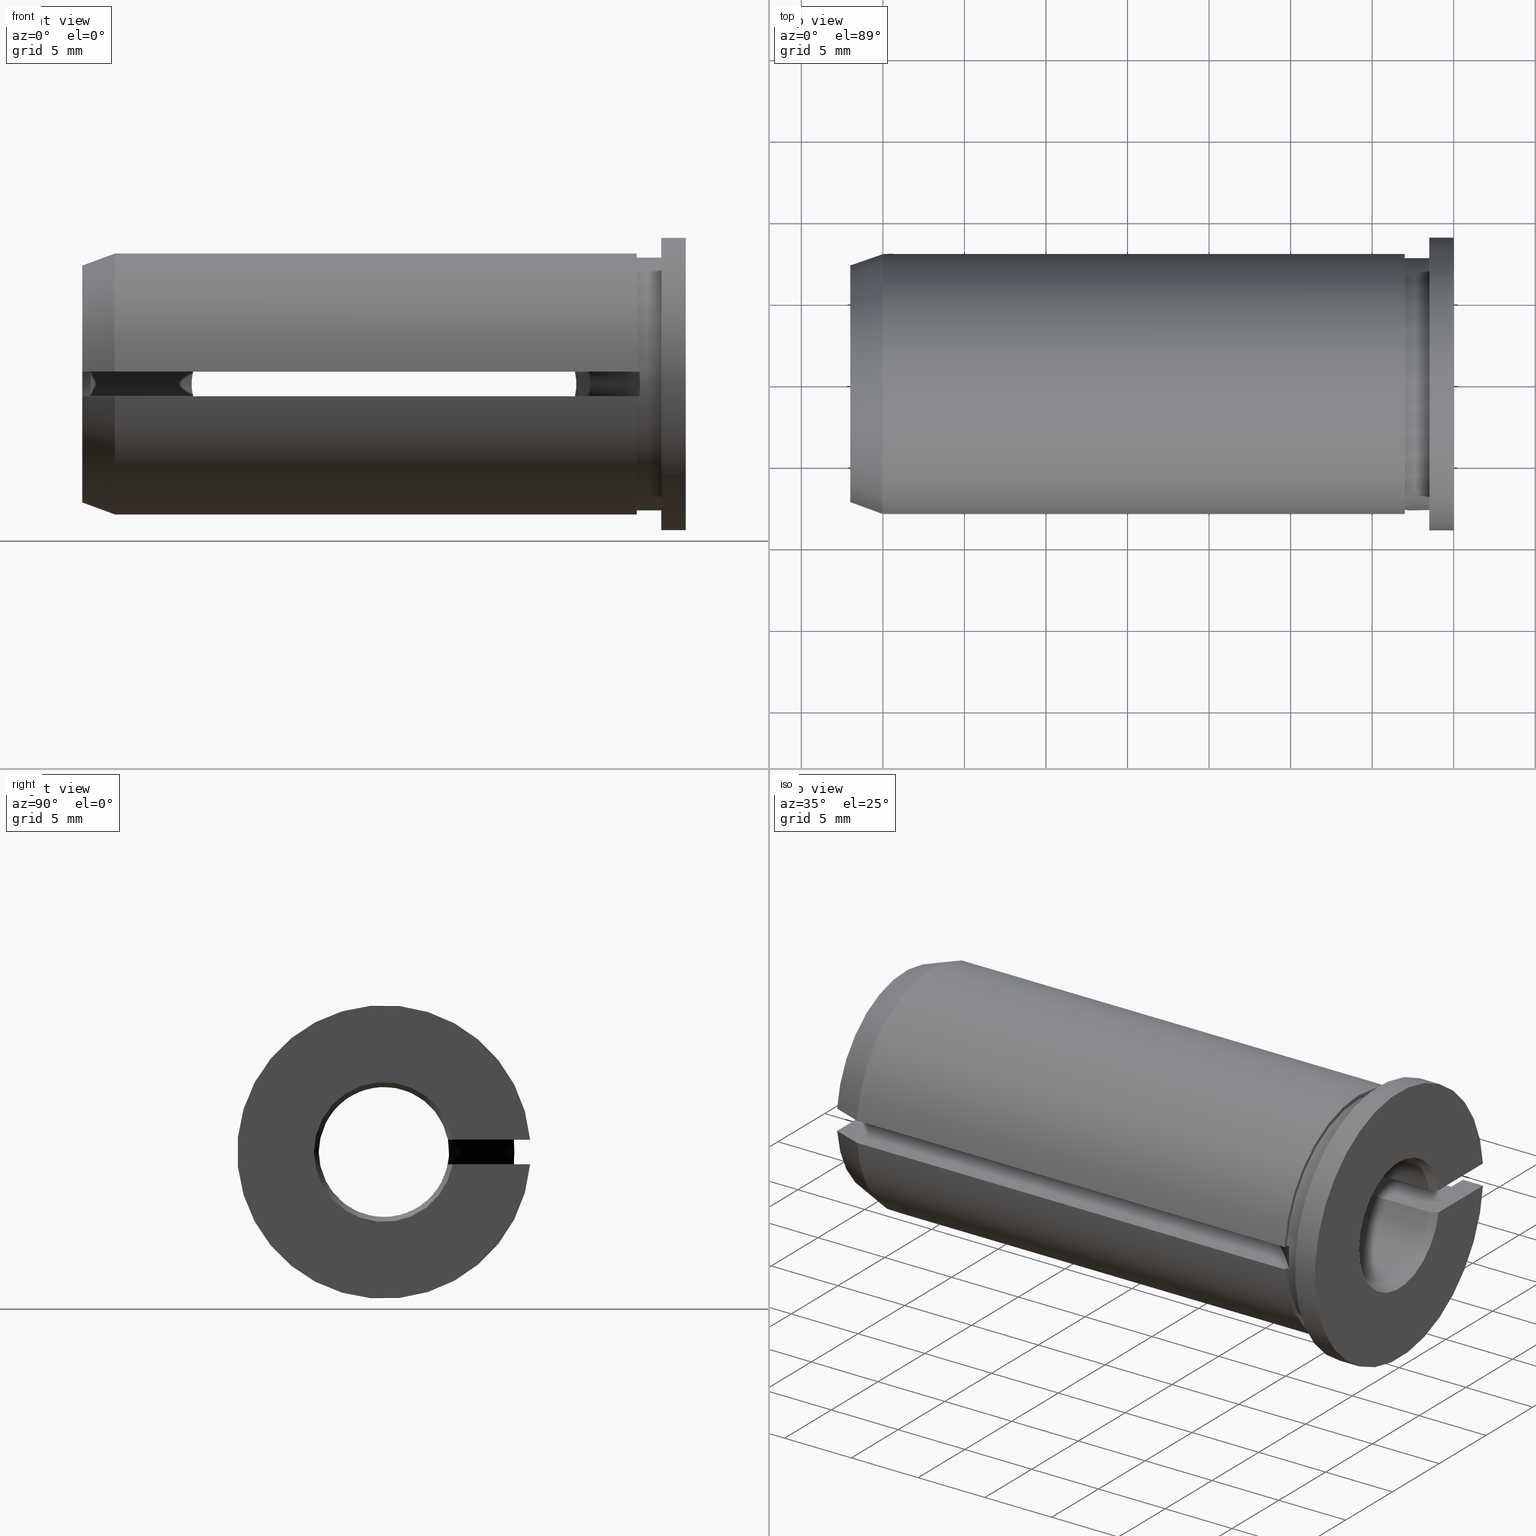
[diagram: canonical four-view strip — front | top / right | iso, engineering-drawing reading convention]
A machine part, canonical four-view strip (front | top / right | iso — engineering-drawing reading convention). The complete STEP part file that produces these views, byte-faithful:
ISO-10303-21;
HEADER;
FILE_DESCRIPTION (( 'STEP AP214' ),
    '1' );
FILE_NAME ('U08.U16.001.037.STEP',
    '2020-08-14T11:05:19',
    ( '' ),
    ( '' ),
    'SwSTEP 2.0',
    'SolidWorks 2017',
    '' );
FILE_SCHEMA (( 'AUTOMOTIVE_DESIGN' ));
ENDSEC;

DATA;
#1 =( NAMED_UNIT ( * ) PLANE_ANGLE_UNIT ( ) SI_UNIT ( $, .RADIAN. ) );
#2 = DIRECTION ( 'NONE',  ( 1.000000000000000000, 0.0000000000000000000, 0.0000000000000000000 ) ) ;
#3 = ORIENTED_EDGE ( 'NONE', *, *, #13, .T. ) ;
#4 = LINE ( 'NONE', #353, #44 ) ;
#5 = CARTESIAN_POINT ( 'NONE',  ( -30.29915502523357100, 4.000133462971036600, 0.2520466085258725700 ) ) ;
#6 = ORIENTED_EDGE ( 'NONE', *, *, #486, .F. ) ;
#7 = AXIS2_PLACEMENT_3D ( 'NONE', #354, #545, #296 ) ;
#8 =( NAMED_UNIT ( * ) PLANE_ANGLE_UNIT ( ) SI_UNIT ( $, .RADIAN. ) );
#9 = CARTESIAN_POINT ( 'NONE',  ( -3.000000000000000900, 7.750000000000000000, -0.7500000000000000000 ) ) ;
#10 = ADVANCED_FACE ( 'NONE', ( #371 ), #45, .F. ) ;
#11 = VERTEX_POINT ( 'NONE', #143 ) ;
#12 = EDGE_LOOP ( 'NONE', ( #37, #88, #140, #230 ) ) ;
#13 = EDGE_CURVE ( 'NONE', #35, #378, #535, .T. ) ;
#14 = CARTESIAN_POINT ( 'NONE',  ( -3.000000000000000900, 7.750000000000000000, 0.0000000000000000000 ) ) ;
#15 = ADVANCED_FACE ( 'NONE', ( #72 ), #584, .F. ) ;
#16 = CARTESIAN_POINT ( 'NONE',  ( -2.831950108100726100, -7.713624310270756000, -0.7500000000000000000 ) ) ;
#17 = ORIENTED_EDGE ( 'NONE', *, *, #360, .F. ) ;
#18 = LINE ( 'NONE', #251, #437 ) ;
#19 = ORIENTED_EDGE ( 'NONE', *, *, #258, .F. ) ;
#20 = ORIENTED_EDGE ( 'NONE', *, *, #525, .T. ) ;
#21 = EDGE_CURVE ( 'NONE', #207, #396, #124, .T. ) ;
#22 = DIRECTION ( 'NONE',  ( 0.0000000000000000000, 0.0000000000000000000, 1.000000000000000000 ) ) ;
#23 = UNCERTAINTY_MEASURE_WITH_UNIT (LENGTH_MEASURE( 1.000000000000000100E-005 ), #280, 'distance_accuracy_value', 'NONE');
#24 = DIRECTION ( 'NONE',  ( 0.0000000000000000000, 0.0000000000000000000, 1.000000000000000000 ) ) ;
#25 = CARTESIAN_POINT ( 'NONE',  ( -2.831950108100726100, -7.713624310270756000, 0.7500000000000000000 ) ) ;
#26 = CIRCLE ( 'NONE', #416, 9.000000000000000000 ) ;
#27 = ORIENTED_EDGE ( 'NONE', *, *, #599, .F. ) ;
#28 = CARTESIAN_POINT ( 'NONE',  ( -10.50000000000000200, 28.50000000000000400, -0.7500000000000000000 ) ) ;
#29 = EDGE_LOOP ( 'NONE', ( #462, #304, #223, #556, #244, #440, #639, #516, #222 ) ) ;
#30 = AXIS2_PLACEMENT_3D ( 'NONE', #575, #367, #326 ) ;
#31 = CARTESIAN_POINT ( 'NONE',  ( -26.49999999999999600, -28.50000000000000000, 0.7500000000000000000 ) ) ;
#32 = CARTESIAN_POINT ( 'NONE',  ( -37.00000000000000000, -4.222586222931610700, -0.7500000000000000000 ) ) ;
#33 = EDGE_CURVE ( 'NONE', #113, #174, #187, .T. ) ;
#34 = CARTESIAN_POINT ( 'NONE',  ( -36.49999999999991500, -3.929058411375441700, -0.7500000000000000000 ) ) ;
#35 = VERTEX_POINT ( 'NONE', #106 ) ;
#36 = VERTEX_POINT ( 'NONE', #498 ) ;
#37 = ORIENTED_EDGE ( 'NONE', *, *, #349, .F. ) ;
#38 = AXIS2_PLACEMENT_3D ( 'NONE', #450, #504, #197 ) ;
#39 = CARTESIAN_POINT ( 'NONE',  ( -6.701176655096183800, -3.999865424803159500, -0.2562650930468137700 ) ) ;
#40 = AXIS2_PLACEMENT_3D ( 'NONE', #60, #246, #297 ) ;
#41 = VECTOR ( 'NONE', #111, 1000.000000000000000 ) ;
#42 = CARTESIAN_POINT ( 'NONE',  ( -6.730935861621550700, -3.975733101721137300, -0.5054832203984677100 ) ) ;
#43 = ORIENTED_EDGE ( 'NONE', *, *, #184, .F. ) ;
#44 = VECTOR ( 'NONE', #401, 1000.000000000000000 ) ;
#45 = PLANE ( 'NONE',  #315 ) ;
#46 = VERTEX_POINT ( 'NONE', #243 ) ;
#47 = CARTESIAN_POINT ( 'NONE',  ( -10.50000000000000200, 28.50000000000000400, 0.7500000000000000000 ) ) ;
#48 = EDGE_CURVE ( 'NONE', #405, #178, #182, .T. ) ;
#49 = DIRECTION ( 'NONE',  ( 0.0000000000000000000, -1.000000000000000000, 0.0000000000000000000 ) ) ;
#50 = DIRECTION ( 'NONE',  ( 0.0000000000000000000, 0.0000000000000000000, 1.000000000000000000 ) ) ;
#51 = ORIENTED_EDGE ( 'NONE', *, *, #107, .T. ) ;
#52 = FACE_OUTER_BOUND ( 'NONE', #606, .T. ) ;
#53 = AXIS2_PLACEMENT_3D ( 'NONE', #460, #511, #66 ) ;
#54 = ORIENTED_EDGE ( 'NONE', *, *, #518, .T. ) ;
#55 = CARTESIAN_POINT ( 'NONE',  ( -36.49999999999991500, -3.929058411375441700, 0.7500000000000000000 ) ) ;
#56 = ORIENTED_EDGE ( 'NONE', *, *, #127, .T. ) ;
#57 = DIRECTION ( 'NONE',  ( 0.0000000000000000000, 0.0000000000000000000, 1.000000000000000000 ) ) ;
#58 = EDGE_CURVE ( 'NONE', #422, #36, #643, .T. ) ;
#59 = APPLICATION_PROTOCOL_DEFINITION ( 'draft international standard', 'automotive_design', 1998, #453 ) ;
#60 = CARTESIAN_POINT ( 'NONE',  ( -26.49999999999999600, -28.50000000000000000, 0.7500000000000000000 ) ) ;
#61 = VECTOR ( 'NONE', #574, 1000.000000000000000 ) ;
#62 = PLANE ( 'NONE',  #175 ) ;
#63 = EDGE_LOOP ( 'NONE', ( #78, #86, #615, #316, #310, #625, #352, #538 ) ) ;
#64 = LINE ( 'NONE', #494, #431 ) ;
#65 = ORIENTED_EDGE ( 'NONE', *, *, #452, .F. ) ;
#66 = DIRECTION ( 'NONE',  ( -1.000000000000000000, 0.0000000000000000000, 0.0000000000000000000 ) ) ;
#67 = ADVANCED_FACE ( 'NONE', ( #429 ), #398, .F. ) ;
#68 = DIRECTION ( 'NONE',  ( -1.000000000000000000, 0.0000000000000000000, -0.0000000000000000000 ) ) ;
#69 = AXIS2_PLACEMENT_3D ( 'NONE', #28, #374, #81 ) ;
#70 = DIRECTION ( 'NONE',  ( -0.0000000000000000000, -1.000000000000000000, -0.0000000000000000000 ) ) ;
#71 = CYLINDRICAL_SURFACE ( 'NONE', #283, 31.50000000000000000 ) ;
#72 = FACE_OUTER_BOUND ( 'NONE', #12, .T. ) ;
#73 = CARTESIAN_POINT ( 'NONE',  ( -0.5000000000000817100, 3.929058411375441700, 0.7500000000000000000 ) ) ;
#74 = VERTEX_POINT ( 'NONE', #653 ) ;
#75 = CARTESIAN_POINT ( 'NONE',  ( -3.000000000000000900, 7.750000000000000000, -0.7500000000000000000 ) ) ;
#76 =( GEOMETRIC_REPRESENTATION_CONTEXT ( 3 ) GLOBAL_UNCERTAINTY_ASSIGNED_CONTEXT ( ( #536 ) ) GLOBAL_UNIT_ASSIGNED_CONTEXT ( ( #362, #8, #105 ) ) REPRESENTATION_CONTEXT ( 'NONE', 'WORKASPACE' ) );
#77 = FACE_OUTER_BOUND ( 'NONE', #651, .T. ) ;
#78 = ORIENTED_EDGE ( 'NONE', *, *, #473, .F. ) ;
#79 = ORIENTED_EDGE ( 'NONE', *, *, #387, .F. ) ;
#80 = DIRECTION ( 'NONE',  ( 0.0000000000000000000, 0.0000000000000000000, -1.000000000000000000 ) ) ;
#81 = DIRECTION ( 'NONE',  ( -1.000000000000000000, 0.0000000000000000000, 0.0000000000000000000 ) ) ;
#82 = EDGE_CURVE ( 'NONE', #162, #168, #161, .T. ) ;
#83 = DIRECTION ( 'NONE',  ( -1.000000000000000000, -0.0000000000000000000, -0.0000000000000000000 ) ) ;
#84 = FACE_OUTER_BOUND ( 'NONE', #529, .T. ) ;
#85 = PRODUCT_DEFINITION_CONTEXT ( 'detailed design', #356, 'design' ) ;
#86 = ORIENTED_EDGE ( 'NONE', *, *, #159, .T. ) ;
#87 = FACE_OUTER_BOUND ( 'NONE', #477, .T. ) ;
#88 = ORIENTED_EDGE ( 'NONE', *, *, #48, .F. ) ;
#89 = FILL_AREA_STYLE ('',( #232 ) ) ;
#90 = DIRECTION ( 'NONE',  ( -1.000000000000000000, 0.0000000000000000000, 0.0000000000000000000 ) ) ;
#91 = EDGE_CURVE ( 'NONE', #422, #407, #173, .T. ) ;
#92 = CARTESIAN_POINT ( 'NONE',  ( -37.00000000000000000, -7.233280709968929600, 0.7500000000000000000 ) ) ;
#93 = LINE ( 'NONE', #9, #476 ) ;
#94 = VERTEX_POINT ( 'NONE', #601 ) ;
#95 = PLANE ( 'NONE',  #547 ) ;
#96 = CARTESIAN_POINT ( 'NONE',  ( -38.58775536857143600, 0.0000000000000000000, 0.0000000000000000000 ) ) ;
#97 = DIRECTION ( 'NONE',  ( -1.000000000000000000, 0.0000000000000000000, -0.0000000000000000000 ) ) ;
#98 = DIRECTION ( 'NONE',  ( -1.000000000000000000, 0.0000000000000000000, 0.0000000000000000000 ) ) ;
#99 = CARTESIAN_POINT ( 'NONE',  ( -38.58775536857143600, -3.929058411375427900, -0.7500000000000000000 ) ) ;
#100 = AXIS2_PLACEMENT_3D ( 'NONE', #491, #591, #652 ) ;
#101 = FACE_OUTER_BOUND ( 'NONE', #300, .T. ) ;
#102 = DIRECTION ( 'NONE',  ( 0.0000000000000000000, 1.000000000000000000, 0.0000000000000000000 ) ) ;
#103 = ORIENTED_EDGE ( 'NONE', *, *, #116, .T. ) ;
#104 = CIRCLE ( 'NONE', #480, 7.999999999999996400 ) ;
#105 =( NAMED_UNIT ( * ) SI_UNIT ( $, .STERADIAN. ) SOLID_ANGLE_UNIT ( ) );
#106 = CARTESIAN_POINT ( 'NONE',  ( -34.99999999999999300, -7.964766161036994400, -0.7500000000000000000 ) ) ;
#107 = EDGE_CURVE ( 'NONE', #11, #74, #233, .T. ) ;
#108 = ADVANCED_FACE ( 'NONE', ( #84 ), #332, .T. ) ;
#109 = CARTESIAN_POINT ( 'NONE',  ( 0.0000000000000000000, 4.288675134594814000, 0.7500000000000000000 ) ) ;
#110 = SURFACE_STYLE_USAGE ( .BOTH. , #248 ) ;
#111 = DIRECTION ( 'NONE',  ( -1.000000000000000000, -0.0000000000000000000, -0.0000000000000000000 ) ) ;
#112 = ORIENTED_EDGE ( 'NONE', *, *, #573, .T. ) ;
#113 = VERTEX_POINT ( 'NONE', #357 ) ;
#114 = B_SPLINE_CURVE_WITH_KNOTS ( 'NONE', 3,
 ( #320, #428, #218, #73 ),
 .UNSPECIFIED., .F., .F.,
 ( 4, 4 ),
 ( 0.004644593513985363600, 0.005224383495892881400 ),
 .UNSPECIFIED. ) ;
#115 = FACE_OUTER_BOUND ( 'NONE', #515, .T. ) ;
#116 = EDGE_CURVE ( 'NONE', #46, #189, #221, .T. ) ;
#117 = CARTESIAN_POINT ( 'NONE',  ( -3.000000000000002700, 7.713624310270756000, -0.7500000000000000000 ) ) ;
#118 = ORIENTED_EDGE ( 'NONE', *, *, #368, .T. ) ;
#119 = CIRCLE ( 'NONE', #40, 31.50000000000000000 ) ;
#120 = DIRECTION ( 'NONE',  ( -0.0000000000000000000, 0.0000000000000000000, -1.000000000000000000 ) ) ;
#121 = UNCERTAINTY_MEASURE_WITH_UNIT (LENGTH_MEASURE( 1.000000000000000100E-005 ), #508, 'distance_accuracy_value', 'NONE');
#122 = AXIS2_PLACEMENT_3D ( 'NONE', #526, #120, #519 ) ;
#123 = DIRECTION ( 'NONE',  ( 0.0000000000000000000, 1.000000000000000000, 0.0000000000000000000 ) ) ;
#124 = CIRCLE ( 'NONE', #245, 7.750000000000000000 ) ;
#125 = VECTOR ( 'NONE', #510, 1000.000000000000000 ) ;
#126 = ORIENTED_EDGE ( 'NONE', *, *, #493, .T. ) ;
#127 = EDGE_CURVE ( 'NONE', #472, #396, #467, .T. ) ;
#128 = VERTEX_POINT ( 'NONE', #157 ) ;
#129 = DIRECTION ( 'NONE',  ( 1.000000000000000000, 0.0000000000000000000, 0.0000000000000000000 ) ) ;
#130 = CARTESIAN_POINT ( 'NONE',  ( -38.58775536857143600, 3.929058411375427900, 0.7500000000000000000 ) ) ;
#131 = VECTOR ( 'NONE', #123, 1000.000000000000000 ) ;
#132 = ORIENTED_EDGE ( 'NONE', *, *, #231, .T. ) ;
#133 = SURFACE_STYLE_FILL_AREA ( #551 ) ;
#134 = ORIENTED_EDGE ( 'NONE', *, *, #441, .T. ) ;
#135 = AXIS2_PLACEMENT_3D ( 'NONE', #647, #600, #295 ) ;
#136 =( NAMED_UNIT ( * ) PLANE_ANGLE_UNIT ( ) SI_UNIT ( $, .RADIAN. ) );
#137 = CARTESIAN_POINT ( 'NONE',  ( -36.66661458569266300, -4.026990247280057400, -0.7500000000000000000 ) ) ;
#138 = EDGE_CURVE ( 'NONE', #168, #444, #204, .T. ) ;
#139 = CARTESIAN_POINT ( 'NONE',  ( -3.000000000000002700, -7.964766161036996200, 0.7500000000000000000 ) ) ;
#140 = ORIENTED_EDGE ( 'NONE', *, *, #461, .T. ) ;
#141 = LINE ( 'NONE', #409, #309 ) ;
#142 = PLANE ( 'NONE',  #100 ) ;
#143 = CARTESIAN_POINT ( 'NONE',  ( -30.21088099117843500, 3.929058411375426100, -0.7500000000000000000 ) ) ;
#144 = AXIS2_PLACEMENT_3D ( 'NONE', #247, #605, #610 ) ;
#145 = CARTESIAN_POINT ( 'NONE',  ( -6.789119008821558100, -3.929058411375429200, 0.7500000000000000000 ) ) ;
#146 = ORIENTED_EDGE ( 'NONE', *, *, #599, .T. ) ;
#147 = VECTOR ( 'NONE', #541, 1000.000000000000000 ) ;
#148 = ORIENTED_EDGE ( 'NONE', *, *, #265, .T. ) ;
#149 = CARTESIAN_POINT ( 'NONE',  ( 0.0000000000000000000, 4.288675134594814000, -0.7500000000000000000 ) ) ;
#150 = EDGE_CURVE ( 'NONE', #565, #128, #602, .T. ) ;
#151 = CARTESIAN_POINT ( 'NONE',  ( -30.26908032438750200, 3.975746086184807300, 0.5054151981101995300 ) ) ;
#152 = CARTESIAN_POINT ( 'NONE',  ( -36.83328484345177900, -4.124826698394884700, 0.7500000000000000000 ) ) ;
#153 = CARTESIAN_POINT ( 'NONE',  ( -30.26906413837843600, 3.975733101721137300, -0.5054832203984676000 ) ) ;
#154 =( NAMED_UNIT ( * ) SI_UNIT ( $, .STERADIAN. ) SOLID_ANGLE_UNIT ( ) );
#155 = ORIENTED_EDGE ( 'NONE', *, *, #82, .T. ) ;
#156 = CYLINDRICAL_SURFACE ( 'NONE', #217, 7.999999999999998200 ) ;
#157 = CARTESIAN_POINT ( 'NONE',  ( -1.500000000000001300, 7.713624310270756000, 0.7500000000000000000 ) ) ;
#158 = VERTEX_POINT ( 'NONE', #259 ) ;
#159 = EDGE_CURVE ( 'NONE', #594, #378, #592, .T. ) ;
#160 = DIRECTION ( 'NONE',  ( -1.000000000000000000, -0.0000000000000000000, -0.0000000000000000000 ) ) ;
#161 = CIRCLE ( 'NONE', #181, 4.000000000000000000 ) ;
#162 = VERTEX_POINT ( 'NONE', #622 ) ;
#163 = ORIENTED_EDGE ( 'NONE', *, *, #528, .F. ) ;
#164 = ADVANCED_FACE ( 'NONE', ( #115 ), #71, .F. ) ;
#165 = AXIS2_PLACEMENT_3D ( 'NONE', #96, #289, #447 ) ;
#166 = CARTESIAN_POINT ( 'NONE',  ( -2.789253922157725700, -7.762239589537167600, -0.2500000000000003300 ) ) ;
#167 = EDGE_CURVE ( 'NONE', #46, #207, #93, .T. ) ;
#168 = VERTEX_POINT ( 'NONE', #513 ) ;
#169 = VECTOR ( 'NONE', #347, 1000.000000000000000 ) ;
#170 = ORIENTED_EDGE ( 'NONE', *, *, #82, .F. ) ;
#171 = CARTESIAN_POINT ( 'NONE',  ( 0.0000000000000000000, 8.968695557326048700, -0.7500000000000000000 ) ) ;
#172 = CARTESIAN_POINT ( 'NONE',  ( -2.789253922157725300, -7.762239589537167600, 0.2500000000000000000 ) ) ;
#173 = LINE ( 'NONE', #505, #41 ) ;
#174 = VERTEX_POINT ( 'NONE', #205 ) ;
#175 = AXIS2_PLACEMENT_3D ( 'NONE', #14, #68, #412 ) ;
#176 = ORIENTED_EDGE ( 'NONE', *, *, #338, .T. ) ;
#177 = CARTESIAN_POINT ( 'NONE',  ( -34.99999999999999300, 0.0000000000000000000, 0.0000000000000000000 ) ) ;
#178 = VERTEX_POINT ( 'NONE', #617 ) ;
#179 = CYLINDRICAL_SURFACE ( 'NONE', #165, 9.000000000000000000 ) ;
#180 = ORIENTED_EDGE ( 'NONE', *, *, #626, .F. ) ;
#181 = AXIS2_PLACEMENT_3D ( 'NONE', #302, #298, #408 ) ;
#182 = B_SPLINE_CURVE_WITH_KNOTS ( 'NONE', 3,
 ( #395, #655, #496, #549 ),
 .UNSPECIFIED., .F., .F.,
 ( 4, 4 ),
 ( 0.0000000000000000000, 0.001499999999999999800 ),
 .UNSPECIFIED. ) ;
#183 = PLANE ( 'NONE',  #581 ) ;
#184 = EDGE_CURVE ( 'NONE', #472, #444, #195, .T. ) ;
#185 = CARTESIAN_POINT ( 'NONE',  ( -37.00000000000000000, -4.222586222931610700, -0.7500000000000000000 ) ) ;
#186 = CARTESIAN_POINT ( 'NONE',  ( 0.0000000000000000000, 4.288675134594814000, 0.0000000000000000000 ) ) ;
#187 = LINE ( 'NONE', #402, #463 ) ;
#188 = CARTESIAN_POINT ( 'NONE',  ( -2.831950108100726100, -7.713624310270756000, 0.7500000000000000000 ) ) ;
#189 = VERTEX_POINT ( 'NONE', #202 ) ;
#190 = VECTOR ( 'NONE', #216, 1000.000000000000000 ) ;
#191 = VERTEX_POINT ( 'NONE', #257 ) ;
#192 = DIRECTION ( 'NONE',  ( -1.000000000000000000, -0.0000000000000000000, -0.0000000000000000000 ) ) ;
#193 = DIRECTION ( 'NONE',  ( -0.0000000000000000000, 0.0000000000000000000, 1.000000000000000000 ) ) ;
#194 = STYLED_ITEM ( 'NONE', ( #273 ), #399 ) ;
#195 = CIRCLE ( 'NONE', #53, 31.50000000000000000 ) ;
#196 = ORIENTED_EDGE ( 'NONE', *, *, #219, .T. ) ;
#197 = DIRECTION ( 'NONE',  ( 0.0000000000000000000, 0.0000000000000000000, 1.000000000000000000 ) ) ;
#198 = ORIENTED_EDGE ( 'NONE', *, *, #642, .F. ) ;
#199 = CARTESIAN_POINT ( 'NONE',  ( -30.29882334490380600, 3.999865424803159500, -0.2562650930468135000 ) ) ;
#200 = EDGE_CURVE ( 'NONE', #254, #603, #630, .T. ) ;
#201 = DIRECTION ( 'NONE',  ( 1.000000000000000000, 0.0000000000000000000, 0.0000000000000000000 ) ) ;
#202 = CARTESIAN_POINT ( 'NONE',  ( -3.000000000000002700, -7.964766161036996200, -0.7500000000000000000 ) ) ;
#203 = CARTESIAN_POINT ( 'NONE',  ( -1.500000000000001300, 0.0000000000000000000, 0.0000000000000000000 ) ) ;
#204 = LINE ( 'NONE', #99, #564 ) ;
#205 = CARTESIAN_POINT ( 'NONE',  ( 0.0000000000000000000, 8.968695557326048700, 0.7500000000000000000 ) ) ;
#206 = ORIENTED_EDGE ( 'NONE', *, *, #58, .F. ) ;
#207 = VERTEX_POINT ( 'NONE', #117 ) ;
#208 = B_SPLINE_CURVE_WITH_KNOTS ( 'NONE', 3,
 ( #582, #434, #225, #636 ),
 .UNSPECIFIED., .F., .F.,
 ( 4, 4 ),
 ( 0.004644593513985363600, 0.005224383495892881400 ),
 .UNSPECIFIED. ) ;
#209 = DIRECTION ( 'NONE',  ( 1.000000000000000000, 0.0000000000000000000, 0.0000000000000000000 ) ) ;
#210 = AXIS2_PLACEMENT_3D ( 'NONE', #212, #632, #80 ) ;
#211 = ADVANCED_FACE ( 'NONE', ( #101 ), #62, .F. ) ;
#212 = CARTESIAN_POINT ( 'NONE',  ( -0.5000000000000004400, 0.0000000000000000000, 0.0000000000000000000 ) ) ;
#213 = ORIENTED_EDGE ( 'NONE', *, *, #518, .F. ) ;
#214 = LINE ( 'NONE', #640, #376 ) ;
#215 = CARTESIAN_POINT ( 'NONE',  ( -37.00000000000000000, 0.0000000000000000000, 0.0000000000000000000 ) ) ;
#216 = DIRECTION ( 'NONE',  ( -1.000000000000000000, -0.0000000000000000000, -0.0000000000000000000 ) ) ;
#217 = AXIS2_PLACEMENT_3D ( 'NONE', #382, #83, #479 ) ;
#218 = CARTESIAN_POINT ( 'NONE',  ( -0.3333854143073288800, 4.026990247280059200, 0.7500000000000000000 ) ) ;
#219 = EDGE_CURVE ( 'NONE', #254, #11, #290, .T. ) ;
#220 = CARTESIAN_POINT ( 'NONE',  ( 0.0000000000000000000, 0.0000000000000000000, 0.0000000000000000000 ) ) ;
#221 = CIRCLE ( 'NONE', #424, 8.000000000000000000 ) ;
#222 = ORIENTED_EDGE ( 'NONE', *, *, #286, .T. ) ;
#223 = ORIENTED_EDGE ( 'NONE', *, *, #626, .T. ) ;
#224 = CARTESIAN_POINT ( 'NONE',  ( -0.5000000000000817100, 3.929058411375441700, -0.7500000000000000000 ) ) ;
#225 = CARTESIAN_POINT ( 'NONE',  ( -0.3333854143073288800, 4.026990247280059200, -0.7500000000000000000 ) ) ;
#226 = VECTOR ( 'NONE', #70, 1000.000000000000000 ) ;
#227 = ORIENTED_EDGE ( 'NONE', *, *, #321, .F. ) ;
#228 = AXIS2_PLACEMENT_3D ( 'NONE', #215, #372, #627 ) ;
#229 = DIRECTION ( 'NONE',  ( 0.0000000000000000000, 0.0000000000000000000, 1.000000000000000000 ) ) ;
#230 = ORIENTED_EDGE ( 'NONE', *, *, #107, .F. ) ;
#231 = EDGE_CURVE ( 'NONE', #430, #113, #26, .T. ) ;
#232 = FILL_AREA_STYLE_COLOUR ( '', #324 ) ;
#233 = B_SPLINE_CURVE_WITH_KNOTS ( 'NONE', 3,
 ( #550, #153, #199, #5, #151, #249 ),
 .UNSPECIFIED., .F., .F.,
 ( 4, 2, 4 ),
 ( 1.084202172485504400E-019, 0.0007562263913862887500, 0.001512452782772577300 ),
 .UNSPECIFIED. ) ;
#234 = CARTESIAN_POINT ( 'NONE',  ( -35.66670157318046800, -7.721033177172921000, 0.7500000000000000000 ) ) ;
#235 = LINE ( 'NONE', #75, #61 ) ;
#236 = ORIENTED_EDGE ( 'NONE', *, *, #635, .F. ) ;
#237 = CARTESIAN_POINT ( 'NONE',  ( -34.99999999999999300, -7.964766161036994400, 0.7500000000000000000 ) ) ;
#238 = AXIS2_PLACEMENT_3D ( 'NONE', #474, #22, #373 ) ;
#239 = DIRECTION ( 'NONE',  ( 1.000000000000000000, 0.0000000000000000000, 0.0000000000000000000 ) ) ;
#240 = CARTESIAN_POINT ( 'NONE',  ( -6.700844974766410700, -4.000133462971036600, 0.2520466085258714100 ) ) ;
#241 = ORIENTED_EDGE ( 'NONE', *, *, #635, .T. ) ;
#242 = CIRCLE ( 'NONE', #355, 7.750000000000000000 ) ;
#243 = CARTESIAN_POINT ( 'NONE',  ( -3.000000000000002700, 7.964766161036996200, -0.7500000000000000000 ) ) ;
#244 = ORIENTED_EDGE ( 'NONE', *, *, #150, .T. ) ;
#245 = AXIS2_PLACEMENT_3D ( 'NONE', #457, #192, #57 ) ;
#246 = DIRECTION ( 'NONE',  ( 0.0000000000000000000, 0.0000000000000000000, 1.000000000000000000 ) ) ;
#247 = CARTESIAN_POINT ( 'NONE',  ( -37.00000000000000000, 7.272059531467589500, 0.0000000000000000000 ) ) ;
#248 = SURFACE_SIDE_STYLE ('',( #133 ) ) ;
#249 = CARTESIAN_POINT ( 'NONE',  ( -30.21088099117843500, 3.929058411375426100, 0.7500000000000000000 ) ) ;
#250 = AXIS2_PLACEMENT_3D ( 'NONE', #607, #612, #609 ) ;
#251 = CARTESIAN_POINT ( 'NONE',  ( -38.58775536857143600, 7.964766161036994400, 0.7500000000000000000 ) ) ;
#252 = EDGE_LOOP ( 'NONE', ( #155, #470, #261, #361 ) ) ;
#253 = LINE ( 'NONE', #109, #125 ) ;
#254 = VERTEX_POINT ( 'NONE', #224 ) ;
#255 = CARTESIAN_POINT ( 'NONE',  ( -36.66661458569266300, -4.026990247280057400, 0.7500000000000000000 ) ) ;
#256 = ORIENTED_EDGE ( 'NONE', *, *, #404, .F. ) ;
#257 = CARTESIAN_POINT ( 'NONE',  ( -6.789119008821558100, -3.929058411375429200, 0.7500000000000000000 ) ) ;
#258 = EDGE_CURVE ( 'NONE', #94, #594, #325, .T. ) ;
#259 = CARTESIAN_POINT ( 'NONE',  ( -1.500000000000001300, 7.713624310270756000, -0.7500000000000000000 ) ) ;
#260 = FACE_OUTER_BOUND ( 'NONE', #63, .T. ) ;
#261 = ORIENTED_EDGE ( 'NONE', *, *, #567, .T. ) ;
#262 = CONICAL_SURFACE ( 'NONE', #558, 4.288675134594814900, 0.5235987755983014800 ) ;
#263 = EDGE_LOOP ( 'NONE', ( #499, #271, #616, #393 ) ) ;
#264 = ADVANCED_FACE ( 'NONE', ( #443 ), #490, .F. ) ;
#265 = EDGE_CURVE ( 'NONE', #291, #544, #576, .T. ) ;
#266 = DIRECTION ( 'NONE',  ( -1.000000000000000000, -0.0000000000000000000, -0.0000000000000000000 ) ) ;
#267 = ORIENTED_EDGE ( 'NONE', *, *, #349, .T. ) ;
#268 = VECTOR ( 'NONE', #49, 1000.000000000000000 ) ;
#269 = ORIENTED_EDGE ( 'NONE', *, *, #116, .F. ) ;
#270 = PLANE ( 'NONE',  #122 ) ;
#271 = ORIENTED_EDGE ( 'NONE', *, *, #433, .T. ) ;
#272 = PRESENTATION_LAYER_ASSIGNMENT (  '', '', ( #194 ) ) ;
#273 = PRESENTATION_STYLE_ASSIGNMENT (( #580 ) ) ;
#274 = PRODUCT ( 'U08.U16.001.037', 'U08.U16.001.037', '', ( #305 ) ) ;
#275 = ORIENTED_EDGE ( 'NONE', *, *, #91, .T. ) ;
#276 = COLOUR_RGB ( '',0.6509803921568627600, 0.6196078431372549200, 0.5882352941176470800 ) ;
#277 = ORIENTED_EDGE ( 'NONE', *, *, #473, .T. ) ;
#278 = EDGE_CURVE ( 'NONE', #501, #472, #572, .T. ) ;
#279 = DIRECTION ( 'NONE',  ( 0.0000000000000000000, 0.0000000000000000000, 1.000000000000000000 ) ) ;
#280 =( LENGTH_UNIT ( ) NAMED_UNIT ( * ) SI_UNIT ( .MILLI., .METRE. ) );
#281 = CARTESIAN_POINT ( 'NONE',  ( -37.00000000000000000, -7.233280709968929600, -0.7500000000000000000 ) ) ;
#282 = VERTEX_POINT ( 'NONE', #171 ) ;
#283 = AXIS2_PLACEMENT_3D ( 'NONE', #306, #613, #209 ) ;
#284 = CARTESIAN_POINT ( 'NONE',  ( -6.789119008821558100, -3.929058411375429200, -0.7500000000000000000 ) ) ;
#285 = EDGE_LOOP ( 'NONE', ( #227, #522, #148, #523 ) ) ;
#286 = EDGE_CURVE ( 'NONE', #544, #603, #114, .T. ) ;
#287 = CARTESIAN_POINT ( 'NONE',  ( -6.789119008821558100, -3.929058411375429200, -0.7500000000000000000 ) ) ;
#288 = CARTESIAN_POINT ( 'NONE',  ( -34.99999999999999300, -7.964766161036994400, -0.7500000000000000000 ) ) ;
#289 = DIRECTION ( 'NONE',  ( -1.000000000000000000, -0.0000000000000000000, -0.0000000000000000000 ) ) ;
#290 = LINE ( 'NONE', #410, #614 ) ;
#291 = VERTEX_POINT ( 'NONE', #468 ) ;
#292 = CIRCLE ( 'NONE', #400, 7.750000000000000000 ) ;
#293 = EDGE_LOOP ( 'NONE', ( #112, #649, #19, #241 ) ) ;
#294 = DIRECTION ( 'NONE',  ( 0.0000000000000000000, 0.0000000000000000000, 1.000000000000000000 ) ) ;
#295 = DIRECTION ( 'NONE',  ( 0.0000000000000000000, 0.0000000000000000000, 1.000000000000000000 ) ) ;
#296 = DIRECTION ( 'NONE',  ( 0.0000000000000000000, 0.0000000000000000000, 1.000000000000000000 ) ) ;
#297 = DIRECTION ( 'NONE',  ( -1.000000000000000000, 0.0000000000000000000, 0.0000000000000000000 ) ) ;
#298 = DIRECTION ( 'NONE',  ( -1.000000000000000000, -0.0000000000000000000, -0.0000000000000000000 ) ) ;
#299 = FILL_AREA_STYLE_COLOUR ( '', #276 ) ;
#300 = EDGE_LOOP ( 'NONE', ( #256, #206, #213, #546 ) ) ;
#301 = VECTOR ( 'NONE', #239, 1000.000000000000000 ) ;
#302 = CARTESIAN_POINT ( 'NONE',  ( -36.50000000000000000, 0.0000000000000000000, 0.0000000000000000000 ) ) ;
#303 = ADVANCED_BREP_SHAPE_REPRESENTATION ( 'U08.U16.001.037', ( #399, #250 ), #76 ) ;
#304 = ORIENTED_EDGE ( 'NONE', *, *, #461, .F. ) ;
#305 = PRODUCT_CONTEXT ( 'NONE', #453, 'mechanical' ) ;
#306 = CARTESIAN_POINT ( 'NONE',  ( -26.49999999999999600, -28.50000000000000000, -0.7500000000000000000 ) ) ;
#307 = ADVANCED_FACE ( 'NONE', ( #260 ), #270, .F. ) ;
#308 = SURFACE_STYLE_FILL_AREA ( #89 ) ;
#309 = VECTOR ( 'NONE', #102, 1000.000000000000000 ) ;
#310 = ORIENTED_EDGE ( 'NONE', *, *, #368, .F. ) ;
#311 = DIRECTION ( 'NONE',  ( -1.000000000000000000, -0.0000000000000000000, -0.0000000000000000000 ) ) ;
#312 = AXIS2_PLACEMENT_3D ( 'NONE', #31, #488, #90 ) ;
#313 = ADVANCED_FACE ( 'NONE', ( #621 ), #340, .T. ) ;
#314 = DIRECTION ( 'NONE',  ( 0.0000000000000000000, 0.0000000000000000000, 1.000000000000000000 ) ) ;
#315 = AXIS2_PLACEMENT_3D ( 'NONE', #186, #97, #448 ) ;
#316 = ORIENTED_EDGE ( 'NONE', *, *, #497, .F. ) ;
#317 = ORIENTED_EDGE ( 'NONE', *, *, #642, .T. ) ;
#318 = DIRECTION ( 'NONE',  ( 0.0000000000000000000, 0.0000000000000000000, 1.000000000000000000 ) ) ;
#319 = MECHANICAL_DESIGN_GEOMETRIC_PRESENTATION_REPRESENTATION (  '', ( #194 ), #503 ) ;
#320 = CARTESIAN_POINT ( 'NONE',  ( 0.0000000000000000000, 4.222586222931609800, 0.7500000000000000000 ) ) ;
#321 = EDGE_CURVE ( 'NONE', #282, #174, #483, .T. ) ;
#322 = DIRECTION ( 'NONE',  ( -1.000000000000000000, -0.0000000000000000000, -0.0000000000000000000 ) ) ;
#323 = B_SPLINE_CURVE_WITH_KNOTS ( 'NONE', 3,
 ( #559, #152, #255, #55 ),
 .UNSPECIFIED., .F., .F.,
 ( 4, 4 ),
 ( 0.004644593513985361900, 0.005224383495892881400 ),
 .UNSPECIFIED. ) ;
#324 = COLOUR_RGB ( '',0.6509803921568627600, 0.6196078431372549200, 0.5882352941176470800 ) ;
#325 = CIRCLE ( 'NONE', #228, 4.288675134594814900 ) ;
#326 = DIRECTION ( 'NONE',  ( 0.0000000000000000000, 0.0000000000000000000, -1.000000000000000000 ) ) ;
#327 = ORIENTED_EDGE ( 'NONE', *, *, #611, .T. ) ;
#328 = PLANE ( 'NONE',  #69 ) ;
#329 = DIRECTION ( 'NONE',  ( -1.000000000000000000, -0.0000000000000000000, -0.0000000000000000000 ) ) ;
#330 = PRODUCT_DEFINITION ( 'UNKNOWN', '', #435, #85 ) ;
#331 =( NAMED_UNIT ( * ) SI_UNIT ( $, .STERADIAN. ) SOLID_ANGLE_UNIT ( ) );
#332 = CYLINDRICAL_SURFACE ( 'NONE', #7, 7.750000000000000000 ) ;
#333 = ORIENTED_EDGE ( 'NONE', *, *, #387, .T. ) ;
#334 = FACE_OUTER_BOUND ( 'NONE', #623, .T. ) ;
#335 = ORIENTED_EDGE ( 'NONE', *, *, #167, .F. ) ;
#336 = ORIENTED_EDGE ( 'NONE', *, *, #573, .F. ) ;
#337 = CARTESIAN_POINT ( 'NONE',  ( -2.831950108100726100, -7.713624310270756000, -0.7500000000000000000 ) ) ;
#338 = EDGE_CURVE ( 'NONE', #501, #509, #348, .T. ) ;
#339 = DIRECTION ( 'NONE',  ( 1.000000000000000000, 0.0000000000000000000, 0.0000000000000000000 ) ) ;
#340 = CONICAL_SURFACE ( 'NONE', #30, 7.999999999999996400, 0.3490658503988667300 ) ;
#341 = CARTESIAN_POINT ( 'NONE',  ( -3.000000000000002700, -7.713624310270756000, 0.7500000000000000000 ) ) ;
#342 = EDGE_LOOP ( 'NONE', ( #521, #3, #336, #415 ) ) ;
#343 = CARTESIAN_POINT ( 'NONE',  ( -3.000000000000002700, 7.713624310270756000, 0.7500000000000000000 ) ) ;
#344 = AXIS2_PLACEMENT_3D ( 'NONE', #531, #527, #634 ) ;
#345 = CARTESIAN_POINT ( 'NONE',  ( -3.000000000000000900, 7.750000000000000000, 0.0000000000000000000 ) ) ;
#346 = DIRECTION ( 'NONE',  ( -1.000000000000000000, -0.0000000000000000000, -0.0000000000000000000 ) ) ;
#347 = DIRECTION ( 'NONE',  ( 0.0000000000000000000, -1.000000000000000000, 0.0000000000000000000 ) ) ;
#348 = LINE ( 'NONE', #628, #190 ) ;
#349 = EDGE_CURVE ( 'NONE', #178, #11, #543, .T. ) ;
#350 = ORIENTED_EDGE ( 'NONE', *, *, #200, .F. ) ;
#351 = FACE_OUTER_BOUND ( 'NONE', #370, .T. ) ;
#352 = ORIENTED_EDGE ( 'NONE', *, *, #184, .T. ) ;
#353 = CARTESIAN_POINT ( 'NONE',  ( -37.00000000000000000, -14.38647846163204100, 0.7500000000000000000 ) ) ;
#354 = CARTESIAN_POINT ( 'NONE',  ( -38.58775536857143600, 0.0000000000000000000, 0.0000000000000000000 ) ) ;
#355 = AXIS2_PLACEMENT_3D ( 'NONE', #542, #548, #449 ) ;
#356 = APPLICATION_CONTEXT ( 'automotive_design' ) ;
#357 = CARTESIAN_POINT ( 'NONE',  ( -1.500000000000001300, 8.968695557326048700, 0.7500000000000000000 ) ) ;
#358 = LINE ( 'NONE', #475, #637 ) ;
#359 = ORIENTED_EDGE ( 'NONE', *, *, #150, .F. ) ;
#360 = EDGE_CURVE ( 'NONE', #128, #113, #391, .T. ) ;
#361 = ORIENTED_EDGE ( 'NONE', *, *, #441, .F. ) ;
#362 =( LENGTH_UNIT ( ) NAMED_UNIT ( * ) SI_UNIT ( .MILLI., .METRE. ) );
#363 = VECTOR ( 'NONE', #346, 1000.000000000000000 ) ;
#364 = EDGE_LOOP ( 'NONE', ( #350, #196, #51, #65 ) ) ;
#365 = CIRCLE ( 'NONE', #344, 31.50000000000000000 ) ;
#366 = ORIENTED_EDGE ( 'NONE', *, *, #167, .T. ) ;
#367 = DIRECTION ( 'NONE',  ( 1.000000000000000000, 0.0000000000000000000, 0.0000000000000000000 ) ) ;
#368 = EDGE_CURVE ( 'NONE', #396, #189, #235, .T. ) ;
#369 = VECTOR ( 'NONE', #403, 1000.000000000000000 ) ;
#370 = EDGE_LOOP ( 'NONE', ( #198, #327, #132, #17 ) ) ;
#371 = FACE_OUTER_BOUND ( 'NONE', #285, .T. ) ;
#372 = DIRECTION ( 'NONE',  ( -1.000000000000000000, -0.0000000000000000000, -0.0000000000000000000 ) ) ;
#373 = DIRECTION ( 'NONE',  ( -1.000000000000000000, 0.0000000000000000000, 0.0000000000000000000 ) ) ;
#374 = DIRECTION ( 'NONE',  ( -0.0000000000000000000, 0.0000000000000000000, -1.000000000000000000 ) ) ;
#375 = ORIENTED_EDGE ( 'NONE', *, *, #567, .F. ) ;
#376 = VECTOR ( 'NONE', #339, 1000.000000000000000 ) ;
#377 = DIRECTION ( 'NONE',  ( -1.000000000000000000, -0.0000000000000000000, -0.0000000000000000000 ) ) ;
#378 = VERTEX_POINT ( 'NONE', #520 ) ;
#379 = AXIS2_PLACEMENT_3D ( 'NONE', #454, #648, #50 ) ;
#380 = CARTESIAN_POINT ( 'NONE',  ( -36.83328484345177900, -4.124826698394884700, -0.7500000000000000000 ) ) ;
#381 = AXIS2_PLACEMENT_3D ( 'NONE', #641, #489, #451 ) ;
#382 = CARTESIAN_POINT ( 'NONE',  ( -38.58775536857143600, 0.0000000000000000000, 0.0000000000000000000 ) ) ;
#383 = ORIENTED_EDGE ( 'NONE', *, *, #525, .F. ) ;
#384 = FACE_OUTER_BOUND ( 'NONE', #386, .T. ) ;
#385 = ORIENTED_EDGE ( 'NONE', *, *, #258, .T. ) ;
#386 = EDGE_LOOP ( 'NONE', ( #385, #277, #170, #27 ) ) ;
#387 = EDGE_CURVE ( 'NONE', #207, #158, #358, .T. ) ;
#388 = CARTESIAN_POINT ( 'NONE',  ( -38.58775536857143600, -7.964766161036994400, -0.7500000000000000000 ) ) ;
#389 = CARTESIAN_POINT ( 'NONE',  ( -35.66670157318046800, -7.721033177172921000, -0.7500000000000000000 ) ) ;
#390 = CARTESIAN_POINT ( 'NONE',  ( -6.730919675612485200, -3.975746086184807300, 0.5054151981101997500 ) ) ;
#391 = LINE ( 'NONE', #524, #131 ) ;
#392 = CARTESIAN_POINT ( 'NONE',  ( -38.58775536857143600, 7.964766161036994400, -0.7500000000000000000 ) ) ;
#393 = ORIENTED_EDGE ( 'NONE', *, *, #286, .F. ) ;
#394 = FACE_OUTER_BOUND ( 'NONE', #364, .T. ) ;
#395 = CARTESIAN_POINT ( 'NONE',  ( -34.38627579132227700, 7.964766161036994400, 0.7500000000000000000 ) ) ;
#396 = VERTEX_POINT ( 'NONE', #438 ) ;
#397 = CARTESIAN_POINT ( 'NONE',  ( -37.00000000000000000, -7.233280709968929600, 0.7500000000000000000 ) ) ;
#398 = PLANE ( 'NONE',  #144 ) ;
#399 = MANIFOLD_SOLID_BREP ( 'Schnitt-Linear austragen2', #588 ) ;
#400 = AXIS2_PLACEMENT_3D ( 'NONE', #203, #561, #506 ) ;
#401 = DIRECTION ( 'NONE',  ( -0.0000000000000000000, -1.000000000000000000, -0.0000000000000000000 ) ) ;
#402 = CARTESIAN_POINT ( 'NONE',  ( -38.58775536857143600, 8.968695557326048700, 0.7500000000000000000 ) ) ;
#403 = DIRECTION ( 'NONE',  ( 1.000000000000000000, 0.0000000000000000000, 0.0000000000000000000 ) ) ;
#404 = EDGE_CURVE ( 'NONE', #36, #565, #413, .T. ) ;
#405 = VERTEX_POINT ( 'NONE', #481 ) ;
#406 = LINE ( 'NONE', #149, #268 ) ;
#407 = VERTEX_POINT ( 'NONE', #487 ) ;
#408 = DIRECTION ( 'NONE',  ( 0.0000000000000000000, 0.0000000000000000000, 1.000000000000000000 ) ) ;
#409 = CARTESIAN_POINT ( 'NONE',  ( -1.500000000000000400, 9.000000000000000000, -0.7500000000000000000 ) ) ;
#410 = CARTESIAN_POINT ( 'NONE',  ( -38.58775536857143600, 3.929058411375427900, -0.7500000000000000000 ) ) ;
#411 = ADVANCED_FACE ( 'NONE', ( #77 ), #587, .T. ) ;
#412 = DIRECTION ( 'NONE',  ( -0.0000000000000000000, 0.0000000000000000000, 1.000000000000000000 ) ) ;
#413 = LINE ( 'NONE', #426, #500 ) ;
#414 = B_SPLINE_CURVE_WITH_KNOTS ( 'NONE', 3,
 ( #32, #380, #137, #34 ),
 .UNSPECIFIED., .F., .F.,
 ( 4, 4 ),
 ( 0.004644593513985361900, 0.005224383495892881400 ),
 .UNSPECIFIED. ) ;
#415 = ORIENTED_EDGE ( 'NONE', *, *, #507, .F. ) ;
#416 = AXIS2_PLACEMENT_3D ( 'NONE', #419, #322, #425 ) ;
#417 = DIRECTION ( 'NONE',  ( 1.000000000000000000, 0.0000000000000000000, 0.0000000000000000000 ) ) ;
#418 = PRODUCT_DEFINITION_SHAPE ( 'NONE', 'NONE',  #330 ) ;
#419 = CARTESIAN_POINT ( 'NONE',  ( -1.500000000000001300, 0.0000000000000000000, 0.0000000000000000000 ) ) ;
#420 = ORIENTED_EDGE ( 'NONE', *, *, #507, .T. ) ;
#421 = FACE_OUTER_BOUND ( 'NONE', #252, .T. ) ;
#422 = VERTEX_POINT ( 'NONE', #139 ) ;
#423 = DIRECTION ( 'NONE',  ( -1.000000000000000000, -0.0000000000000000000, -0.0000000000000000000 ) ) ;
#424 = AXIS2_PLACEMENT_3D ( 'NONE', #598, #557, #294 ) ;
#425 = DIRECTION ( 'NONE',  ( 0.0000000000000000000, 0.0000000000000000000, 1.000000000000000000 ) ) ;
#426 = CARTESIAN_POINT ( 'NONE',  ( -3.000000000000000900, 7.750000000000000000, 0.7500000000000000000 ) ) ;
#427 = B_SPLINE_CURVE_WITH_KNOTS ( 'NONE', 3,
 ( #287, #42, #39, #240, #390, #145 ),
 .UNSPECIFIED., .F., .F.,
 ( 4, 2, 4 ),
 ( 1.084202172485504400E-019, 0.0007562263913862878900, 0.001512452782772575600 ),
 .UNSPECIFIED. ) ;
#428 = CARTESIAN_POINT ( 'NONE',  ( -0.1667151565482172500, 4.124826698394885600, 0.7500000000000000000 ) ) ;
#429 = FACE_OUTER_BOUND ( 'NONE', #293, .T. ) ;
#430 = VERTEX_POINT ( 'NONE', #589 ) ;
#431 = VECTOR ( 'NONE', #645, 1000.000000000000000 ) ;
#432 = ORIENTED_EDGE ( 'NONE', *, *, #493, .F. ) ;
#433 = EDGE_CURVE ( 'NONE', #291, #254, #208, .T. ) ;
#434 = CARTESIAN_POINT ( 'NONE',  ( -0.1667151565482172500, 4.124826698394885600, -0.7500000000000000000 ) ) ;
#435 = PRODUCT_DEFINITION_FORMATION_WITH_SPECIFIED_SOURCE ( 'ANY', '', #274, .NOT_KNOWN. ) ;
#436 = ORIENTED_EDGE ( 'NONE', *, *, #338, .F. ) ;
#437 = VECTOR ( 'NONE', #201, 1000.000000000000000 ) ;
#438 = CARTESIAN_POINT ( 'NONE',  ( -3.000000000000002700, -7.713624310270756000, -0.7500000000000000000 ) ) ;
#439 = ORIENTED_EDGE ( 'NONE', *, *, #21, .F. ) ;
#440 = ORIENTED_EDGE ( 'NONE', *, *, #360, .T. ) ;
#441 = EDGE_CURVE ( 'NONE', #162, #191, #214, .T. ) ;
#442 = DIRECTION ( 'NONE',  ( -1.000000000000000000, 0.0000000000000000000, -0.0000000000000000000 ) ) ;
#443 = FACE_OUTER_BOUND ( 'NONE', #263, .T. ) ;
#444 = VERTEX_POINT ( 'NONE', #284 ) ;
#445 = LINE ( 'NONE', #388, #147 ) ;
#446 = ORIENTED_EDGE ( 'NONE', *, *, #585, .T. ) ;
#447 = DIRECTION ( 'NONE',  ( 0.0000000000000000000, 0.0000000000000000000, 1.000000000000000000 ) ) ;
#448 = DIRECTION ( 'NONE',  ( -0.0000000000000000000, 0.0000000000000000000, 1.000000000000000000 ) ) ;
#449 = DIRECTION ( 'NONE',  ( 0.0000000000000000000, 0.0000000000000000000, 1.000000000000000000 ) ) ;
#450 = CARTESIAN_POINT ( 'NONE',  ( -38.58775536857143600, 0.0000000000000000000, 0.0000000000000000000 ) ) ;
#451 = DIRECTION ( 'NONE',  ( 1.000000000000000000, 0.0000000000000000000, 0.0000000000000000000 ) ) ;
#452 = EDGE_CURVE ( 'NONE', #603, #74, #485, .T. ) ;
#453 = APPLICATION_CONTEXT ( 'automotive_design' ) ;
#454 = CARTESIAN_POINT ( 'NONE',  ( -3.000000000000002700, 0.0000000000000000000, 0.0000000000000000000 ) ) ;
#455 = ORIENTED_EDGE ( 'NONE', *, *, #321, .T. ) ;
#456 = APPLICATION_PROTOCOL_DEFINITION ( 'draft international standard', 'automotive_design', 1998, #356 ) ;
#457 = CARTESIAN_POINT ( 'NONE',  ( -3.000000000000002700, 0.0000000000000000000, 0.0000000000000000000 ) ) ;
#458 = AXIS2_PLACEMENT_3D ( 'NONE', #562, #311, #314 ) ;
#459 = ADVANCED_FACE ( 'NONE', ( #52 ), #156, .T. ) ;
#460 = CARTESIAN_POINT ( 'NONE',  ( -26.49999999999999600, -28.50000000000000000, -0.7500000000000000000 ) ) ;
#461 = EDGE_CURVE ( 'NONE', #405, #74, #365, .T. ) ;
#462 = ORIENTED_EDGE ( 'NONE', *, *, #452, .T. ) ;
#463 = VECTOR ( 'NONE', #2, 1000.000000000000000 ) ;
#464 = ORIENTED_EDGE ( 'NONE', *, *, #91, .F. ) ;
#465 = ADVANCED_FACE ( 'NONE', ( #334 ), #328, .F. ) ;
#466 = EDGE_CURVE ( 'NONE', #407, #35, #104, .T. ) ;
#467 = LINE ( 'NONE', #502, #363 ) ;
#468 = CARTESIAN_POINT ( 'NONE',  ( 0.0000000000000000000, 4.222586222931609800, -0.7500000000000000000 ) ) ;
#469 = ADVANCED_FACE ( 'NONE', ( #384 ), #262, .F. ) ;
#470 = ORIENTED_EDGE ( 'NONE', *, *, #138, .T. ) ;
#471 = PRESENTATION_STYLE_ASSIGNMENT (( #110 ) ) ;
#472 = VERTEX_POINT ( 'NONE', #337 ) ;
#473 = EDGE_CURVE ( 'NONE', #594, #168, #414, .T. ) ;
#474 = CARTESIAN_POINT ( 'NONE',  ( -10.50000000000000200, 28.50000000000000400, -0.7500000000000000000 ) ) ;
#475 = CARTESIAN_POINT ( 'NONE',  ( -38.58775536857143600, 7.713624310270756000, -0.7500000000000000000 ) ) ;
#476 = VECTOR ( 'NONE', #560, 1000.000000000000000 ) ;
#477 = EDGE_LOOP ( 'NONE', ( #586, #20, #455, #532 ) ) ;
#478 = ORIENTED_EDGE ( 'NONE', *, *, #611, .F. ) ;
#479 = DIRECTION ( 'NONE',  ( 0.0000000000000000000, 0.0000000000000000000, 1.000000000000000000 ) ) ;
#480 = AXIS2_PLACEMENT_3D ( 'NONE', #177, #583, #279 ) ;
#481 = CARTESIAN_POINT ( 'NONE',  ( -34.38627579132227700, 7.964766161036994400, 0.7500000000000000000 ) ) ;
#482 = B_SPLINE_CURVE_WITH_KNOTS ( 'NONE', 3,
 ( #237, #234, #597, #92 ),
 .UNSPECIFIED., .F., .F.,
 ( 4, 4 ),
 ( 0.009809443058718536300, 0.01193901348880657900 ),
 .UNSPECIFIED. ) ;
#483 = CIRCLE ( 'NONE', #619, 9.000000000000000000 ) ;
#484 = ORIENTED_EDGE ( 'NONE', *, *, #433, .F. ) ;
#485 = LINE ( 'NONE', #130, #554 ) ;
#486 = EDGE_CURVE ( 'NONE', #509, #565, #242, .T. ) ;
#487 = CARTESIAN_POINT ( 'NONE',  ( -34.99999999999999300, -7.964766161036994400, 0.7500000000000000000 ) ) ;
#488 = DIRECTION ( 'NONE',  ( -0.0000000000000000000, 0.0000000000000000000, -1.000000000000000000 ) ) ;
#489 = DIRECTION ( 'NONE',  ( -0.0000000000000000000, -0.0000000000000000000, 1.000000000000000000 ) ) ;
#490 = CONICAL_SURFACE ( 'NONE', #210, 4.000000000000000000, 0.5235987755983001500 ) ;
#491 = CARTESIAN_POINT ( 'NONE',  ( -1.500000000000000400, 9.000000000000000000, 0.0000000000000000000 ) ) ;
#492 = EDGE_LOOP ( 'NONE', ( #269, #366, #633, #118 ) ) ;
#493 = EDGE_CURVE ( 'NONE', #178, #46, #578, .T. ) ;
#494 = CARTESIAN_POINT ( 'NONE',  ( -38.58775536857143600, 8.968695557326048700, -0.7500000000000000000 ) ) ;
#495 = CARTESIAN_POINT ( 'NONE',  ( -3.000000000000000900, 7.750000000000000000, 0.7500000000000000000 ) ) ;
#496 = CARTESIAN_POINT ( 'NONE',  ( -34.42675289677079300, 8.011848522580068600, -0.2500000000000008900 ) ) ;
#497 = EDGE_CURVE ( 'NONE', #189, #35, #445, .T. ) ;
#498 = CARTESIAN_POINT ( 'NONE',  ( -3.000000000000002700, 7.964766161036996200, 0.7500000000000000000 ) ) ;
#499 = ORIENTED_EDGE ( 'NONE', *, *, #265, .F. ) ;
#500 = VECTOR ( 'NONE', #534, 1000.000000000000000 ) ;
#501 = VERTEX_POINT ( 'NONE', #188 ) ;
#502 = CARTESIAN_POINT ( 'NONE',  ( -38.58775536857143600, -7.713624310270756000, -0.7500000000000000000 ) ) ;
#503 =( GEOMETRIC_REPRESENTATION_CONTEXT ( 3 ) GLOBAL_UNCERTAINTY_ASSIGNED_CONTEXT ( ( #23 ) ) GLOBAL_UNIT_ASSIGNED_CONTEXT ( ( #280, #136, #331 ) ) REPRESENTATION_CONTEXT ( 'NONE', 'WORKASPACE' ) );
#504 = DIRECTION ( 'NONE',  ( -1.000000000000000000, -0.0000000000000000000, -0.0000000000000000000 ) ) ;
#505 = CARTESIAN_POINT ( 'NONE',  ( -38.58775536857143600, -7.964766161036994400, 0.7500000000000000000 ) ) ;
#506 = DIRECTION ( 'NONE',  ( 0.0000000000000000000, 0.0000000000000000000, 1.000000000000000000 ) ) ;
#507 = EDGE_CURVE ( 'NONE', #407, #579, #482, .T. ) ;
#508 =( LENGTH_UNIT ( ) NAMED_UNIT ( * ) SI_UNIT ( .MILLI., .METRE. ) );
#509 = VERTEX_POINT ( 'NONE', #341 ) ;
#510 = DIRECTION ( 'NONE',  ( 0.0000000000000000000, -1.000000000000000000, 0.0000000000000000000 ) ) ;
#511 = DIRECTION ( 'NONE',  ( 0.0000000000000000000, 0.0000000000000000000, 1.000000000000000000 ) ) ;
#512 = ADVANCED_FACE ( 'NONE', ( #624 ), #95, .F. ) ;
#513 = CARTESIAN_POINT ( 'NONE',  ( -36.49999999999991500, -3.929058411375441700, -0.7500000000000000000 ) ) ;
#514 = ADVANCED_FACE ( 'NONE', ( #351 ), #142, .F. ) ;
#515 = EDGE_LOOP ( 'NONE', ( #43, #540, #446, #375 ) ) ;
#516 = ORIENTED_EDGE ( 'NONE', *, *, #656, .T. ) ;
#517 = ADVANCED_FACE ( 'NONE', ( #539 ), #183, .T. ) ;
#518 = EDGE_CURVE ( 'NONE', #509, #422, #530, .T. ) ;
#519 = DIRECTION ( 'NONE',  ( -1.000000000000000000, 0.0000000000000000000, 0.0000000000000000000 ) ) ;
#520 = CARTESIAN_POINT ( 'NONE',  ( -37.00000000000000000, -7.233280709968929600, -0.7500000000000000000 ) ) ;
#521 = ORIENTED_EDGE ( 'NONE', *, *, #466, .T. ) ;
#522 = ORIENTED_EDGE ( 'NONE', *, *, #528, .T. ) ;
#523 = ORIENTED_EDGE ( 'NONE', *, *, #656, .F. ) ;
#524 = CARTESIAN_POINT ( 'NONE',  ( -1.500000000000000400, 9.000000000000000000, 0.7500000000000000000 ) ) ;
#525 = EDGE_CURVE ( 'NONE', #430, #282, #64, .T. ) ;
#526 = CARTESIAN_POINT ( 'NONE',  ( -26.49999999999999600, -28.50000000000000000, -0.7500000000000000000 ) ) ;
#527 = DIRECTION ( 'NONE',  ( 0.0000000000000000000, 0.0000000000000000000, 1.000000000000000000 ) ) ;
#528 = EDGE_CURVE ( 'NONE', #282, #291, #406, .T. ) ;
#529 = EDGE_LOOP ( 'NONE', ( #439, #333, #317, #359, #6, #436, #570, #56 ) ) ;
#530 = LINE ( 'NONE', #495, #169 ) ;
#531 = CARTESIAN_POINT ( 'NONE',  ( -10.50000000000000200, 28.50000000000000400, 0.7500000000000000000 ) ) ;
#532 = ORIENTED_EDGE ( 'NONE', *, *, #33, .F. ) ;
#533 = CARTESIAN_POINT ( 'NONE',  ( -37.00000000000000000, 0.0000000000000000000, 0.0000000000000000000 ) ) ;
#534 = DIRECTION ( 'NONE',  ( 0.0000000000000000000, -1.000000000000000000, 0.0000000000000000000 ) ) ;
#535 = B_SPLINE_CURVE_WITH_KNOTS ( 'NONE', 3,
 ( #288, #389, #596, #281 ),
 .UNSPECIFIED., .F., .F.,
 ( 4, 4 ),
 ( 0.009809443058718536300, 0.01193901348880657900 ),
 .UNSPECIFIED. ) ;
#536 = UNCERTAINTY_MEASURE_WITH_UNIT (LENGTH_MEASURE( 1.000000000000000100E-005 ), #362, 'distance_accuracy_value', 'NONE');
#537 = SURFACE_SIDE_STYLE ('',( #308 ) ) ;
#538 = ORIENTED_EDGE ( 'NONE', *, *, #138, .F. ) ;
#539 = FACE_OUTER_BOUND ( 'NONE', #29, .T. ) ;
#540 = ORIENTED_EDGE ( 'NONE', *, *, #278, .F. ) ;
#541 = DIRECTION ( 'NONE',  ( -1.000000000000000000, -0.0000000000000000000, -0.0000000000000000000 ) ) ;
#542 = CARTESIAN_POINT ( 'NONE',  ( -3.000000000000002700, 0.0000000000000000000, 0.0000000000000000000 ) ) ;
#543 = CIRCLE ( 'NONE', #238, 31.50000000000000000 ) ;
#544 = VERTEX_POINT ( 'NONE', #595 ) ;
#545 = DIRECTION ( 'NONE',  ( -1.000000000000000000, -0.0000000000000000000, -0.0000000000000000000 ) ) ;
#546 = ORIENTED_EDGE ( 'NONE', *, *, #486, .T. ) ;
#547 = AXIS2_PLACEMENT_3D ( 'NONE', #345, #442, #193 ) ;
#548 = DIRECTION ( 'NONE',  ( -1.000000000000000000, -0.0000000000000000000, -0.0000000000000000000 ) ) ;
#549 = CARTESIAN_POINT ( 'NONE',  ( -34.38627579132227700, 7.964766161036994400, -0.7500000000000000000 ) ) ;
#550 = CARTESIAN_POINT ( 'NONE',  ( -30.21088099117843500, 3.929058411375426100, -0.7500000000000000000 ) ) ;
#551 = FILL_AREA_STYLE ('',( #299 ) ) ;
#552 = ADVANCED_FACE ( 'NONE', ( #87 ), #179, .T. ) ;
#553 = ORIENTED_EDGE ( 'NONE', *, *, #497, .T. ) ;
#554 = VECTOR ( 'NONE', #329, 1000.000000000000000 ) ;
#555 = ORIENTED_EDGE ( 'NONE', *, *, #466, .F. ) ;
#556 = ORIENTED_EDGE ( 'NONE', *, *, #404, .T. ) ;
#557 = DIRECTION ( 'NONE',  ( -1.000000000000000000, -0.0000000000000000000, -0.0000000000000000000 ) ) ;
#558 = AXIS2_PLACEMENT_3D ( 'NONE', #533, #377, #229 ) ;
#559 = CARTESIAN_POINT ( 'NONE',  ( -37.00000000000000000, -4.222586222931610700, 0.7500000000000000000 ) ) ;
#560 = DIRECTION ( 'NONE',  ( 0.0000000000000000000, -1.000000000000000000, 0.0000000000000000000 ) ) ;
#561 = DIRECTION ( 'NONE',  ( -1.000000000000000000, -0.0000000000000000000, -0.0000000000000000000 ) ) ;
#562 = CARTESIAN_POINT ( 'NONE',  ( -0.5000000000000004400, 0.0000000000000000000, 0.0000000000000000000 ) ) ;
#563 =( GEOMETRIC_REPRESENTATION_CONTEXT ( 3 ) GLOBAL_UNCERTAINTY_ASSIGNED_CONTEXT ( ( #121 ) ) GLOBAL_UNIT_ASSIGNED_CONTEXT ( ( #508, #1, #154 ) ) REPRESENTATION_CONTEXT ( 'NONE', 'WORKASPACE' ) );
#564 = VECTOR ( 'NONE', #417, 1000.000000000000000 ) ;
#565 = VERTEX_POINT ( 'NONE', #343 ) ;
#566 = ORIENTED_EDGE ( 'NONE', *, *, #219, .F. ) ;
#567 = EDGE_CURVE ( 'NONE', #444, #191, #427, .T. ) ;
#568 = STYLED_ITEM ( 'NONE', ( #471 ), #303 ) ;
#569 = CIRCLE ( 'NONE', #135, 7.272059531467589500 ) ;
#570 = ORIENTED_EDGE ( 'NONE', *, *, #278, .T. ) ;
#571 = CARTESIAN_POINT ( 'NONE',  ( 0.0000000000000000000, 0.0000000000000000000, 0.0000000000000000000 ) ) ;
#572 = B_SPLINE_CURVE_WITH_KNOTS ( 'NONE', 3,
 ( #25, #172, #166, #16 ),
 .UNSPECIFIED., .F., .F.,
 ( 4, 4 ),
 ( 0.0000000000000000000, 0.001500000000000000000 ),
 .UNSPECIFIED. ) ;
#573 = EDGE_CURVE ( 'NONE', #579, #378, #569, .T. ) ;
#574 = DIRECTION ( 'NONE',  ( 0.0000000000000000000, -1.000000000000000000, 0.0000000000000000000 ) ) ;
#575 = CARTESIAN_POINT ( 'NONE',  ( -34.99999999999999300, 0.0000000000000000000, 0.0000000000000000000 ) ) ;
#576 = CIRCLE ( 'NONE', #593, 4.288675134594814000 ) ;
#577 = ORIENTED_EDGE ( 'NONE', *, *, #48, .T. ) ;
#578 = LINE ( 'NONE', #392, #301 ) ;
#579 = VERTEX_POINT ( 'NONE', #397 ) ;
#580 = SURFACE_STYLE_USAGE ( .BOTH. , #537 ) ;
#581 = AXIS2_PLACEMENT_3D ( 'NONE', #47, #646, #98 ) ;
#582 = CARTESIAN_POINT ( 'NONE',  ( 0.0000000000000000000, 4.222586222931609800, -0.7500000000000000000 ) ) ;
#583 = DIRECTION ( 'NONE',  ( -1.000000000000000000, -0.0000000000000000000, -0.0000000000000000000 ) ) ;
#584 = CYLINDRICAL_SURFACE ( 'NONE', #381, 31.50000000000000000 ) ;
#585 = EDGE_CURVE ( 'NONE', #501, #191, #119, .T. ) ;
#586 = ORIENTED_EDGE ( 'NONE', *, *, #231, .F. ) ;
#587 = PLANE ( 'NONE',  #312 ) ;
#588 = CLOSED_SHELL ( 'NONE', ( #211, #552, #10, #264, #620, #469, #67, #313, #459, #512, #108, #514, #164, #307, #411, #15, #465, #517 ) ) ;
#589 = CARTESIAN_POINT ( 'NONE',  ( -1.500000000000001300, 8.968695557326048700, -0.7500000000000000000 ) ) ;
#590 = PRODUCT_RELATED_PRODUCT_CATEGORY ( 'part', '', ( #274 ) ) ;
#591 = DIRECTION ( 'NONE',  ( 1.000000000000000000, 0.0000000000000000000, 0.0000000000000000000 ) ) ;
#592 = LINE ( 'NONE', #618, #226 ) ;
#593 = AXIS2_PLACEMENT_3D ( 'NONE', #220, #423, #24 ) ;
#594 = VERTEX_POINT ( 'NONE', #185 ) ;
#595 = CARTESIAN_POINT ( 'NONE',  ( 0.0000000000000000000, 4.222586222931609800, 0.7500000000000000000 ) ) ;
#596 = CARTESIAN_POINT ( 'NONE',  ( -36.33337187508387700, -7.477214299549897800, -0.7500000000000000000 ) ) ;
#597 = CARTESIAN_POINT ( 'NONE',  ( -36.33337187508387700, -7.477214299549897800, 0.7500000000000000000 ) ) ;
#598 = CARTESIAN_POINT ( 'NONE',  ( -3.000000000000002700, 0.0000000000000000000, 0.0000000000000000000 ) ) ;
#599 = EDGE_CURVE ( 'NONE', #94, #162, #323, .T. ) ;
#600 = DIRECTION ( 'NONE',  ( -1.000000000000000000, -0.0000000000000000000, -0.0000000000000000000 ) ) ;
#601 = CARTESIAN_POINT ( 'NONE',  ( -37.00000000000000000, -4.222586222931610700, 0.7500000000000000000 ) ) ;
#602 = LINE ( 'NONE', #608, #369 ) ;
#603 = VERTEX_POINT ( 'NONE', #654 ) ;
#604 = CYLINDRICAL_SURFACE ( 'NONE', #38, 4.000000000000000000 ) ;
#605 = DIRECTION ( 'NONE',  ( 1.000000000000000000, 0.0000000000000000000, 0.0000000000000000000 ) ) ;
#606 = EDGE_LOOP ( 'NONE', ( #577, #126, #103, #553, #555, #464, #631, #180 ) ) ;
#607 = CARTESIAN_POINT ( 'NONE',  ( 0.0000000000000000000, 0.0000000000000000000, 0.0000000000000000000 ) ) ;
#608 = CARTESIAN_POINT ( 'NONE',  ( -38.58775536857143600, 7.713624310270756000, 0.7500000000000000000 ) ) ;
#609 = DIRECTION ( 'NONE',  ( 1.000000000000000000, 0.0000000000000000000, 0.0000000000000000000 ) ) ;
#610 = DIRECTION ( 'NONE',  ( 0.0000000000000000000, 0.0000000000000000000, -1.000000000000000000 ) ) ;
#611 = EDGE_CURVE ( 'NONE', #158, #430, #141, .T. ) ;
#612 = DIRECTION ( 'NONE',  ( 0.0000000000000000000, 0.0000000000000000000, 1.000000000000000000 ) ) ;
#613 = DIRECTION ( 'NONE',  ( -0.0000000000000000000, -0.0000000000000000000, 1.000000000000000000 ) ) ;
#614 = VECTOR ( 'NONE', #160, 1000.000000000000000 ) ;
#615 = ORIENTED_EDGE ( 'NONE', *, *, #13, .F. ) ;
#616 = ORIENTED_EDGE ( 'NONE', *, *, #200, .T. ) ;
#617 = CARTESIAN_POINT ( 'NONE',  ( -34.38627579132227700, 7.964766161036994400, -0.7500000000000000000 ) ) ;
#618 = CARTESIAN_POINT ( 'NONE',  ( -37.00000000000000000, -14.38647846163204100, -0.7500000000000000000 ) ) ;
#619 = AXIS2_PLACEMENT_3D ( 'NONE', #571, #266, #318 ) ;
#620 = ADVANCED_FACE ( 'NONE', ( #394, #421 ), #604, .F. ) ;
#621 = FACE_OUTER_BOUND ( 'NONE', #342, .T. ) ;
#622 = CARTESIAN_POINT ( 'NONE',  ( -36.49999999999991500, -3.929058411375441700, 0.7500000000000000000 ) ) ;
#623 = EDGE_LOOP ( 'NONE', ( #484, #163, #383, #478, #79, #335, #432, #267, #566 ) ) ;
#624 = FACE_OUTER_BOUND ( 'NONE', #492, .T. ) ;
#625 = ORIENTED_EDGE ( 'NONE', *, *, #127, .F. ) ;
#626 = EDGE_CURVE ( 'NONE', #405, #36, #18, .T. ) ;
#627 = DIRECTION ( 'NONE',  ( 0.0000000000000000000, 0.0000000000000000000, 1.000000000000000000 ) ) ;
#628 = CARTESIAN_POINT ( 'NONE',  ( -38.58775536857143600, -7.713624310270756000, 0.7500000000000000000 ) ) ;
#629 = MECHANICAL_DESIGN_GEOMETRIC_PRESENTATION_REPRESENTATION (  '', ( #568 ), #563 ) ;
#630 = CIRCLE ( 'NONE', #458, 4.000000000000000000 ) ;
#631 = ORIENTED_EDGE ( 'NONE', *, *, #58, .T. ) ;
#632 = DIRECTION ( 'NONE',  ( 1.000000000000000000, 0.0000000000000000000, 0.0000000000000000000 ) ) ;
#633 = ORIENTED_EDGE ( 'NONE', *, *, #21, .T. ) ;
#634 = DIRECTION ( 'NONE',  ( -1.000000000000000000, 0.0000000000000000000, 0.0000000000000000000 ) ) ;
#635 = EDGE_CURVE ( 'NONE', #94, #579, #4, .T. ) ;
#636 = CARTESIAN_POINT ( 'NONE',  ( -0.5000000000000817100, 3.929058411375441700, -0.7500000000000000000 ) ) ;
#637 = VECTOR ( 'NONE', #129, 1000.000000000000000 ) ;
#638 = ORIENTED_EDGE ( 'NONE', *, *, #585, .F. ) ;
#639 = ORIENTED_EDGE ( 'NONE', *, *, #33, .T. ) ;
#640 = CARTESIAN_POINT ( 'NONE',  ( -38.58775536857143600, -3.929058411375427900, 0.7500000000000000000 ) ) ;
#641 = CARTESIAN_POINT ( 'NONE',  ( -10.50000000000000200, 28.50000000000000400, -0.7500000000000000000 ) ) ;
#642 = EDGE_CURVE ( 'NONE', #158, #128, #292, .T. ) ;
#643 = CIRCLE ( 'NONE', #379, 8.000000000000000000 ) ;
#644 = SHAPE_DEFINITION_REPRESENTATION ( #418, #303 ) ;
#645 = DIRECTION ( 'NONE',  ( 1.000000000000000000, 0.0000000000000000000, 0.0000000000000000000 ) ) ;
#646 = DIRECTION ( 'NONE',  ( -0.0000000000000000000, 0.0000000000000000000, -1.000000000000000000 ) ) ;
#647 = CARTESIAN_POINT ( 'NONE',  ( -37.00000000000000000, 0.0000000000000000000, 0.0000000000000000000 ) ) ;
#648 = DIRECTION ( 'NONE',  ( -1.000000000000000000, -0.0000000000000000000, -0.0000000000000000000 ) ) ;
#649 = ORIENTED_EDGE ( 'NONE', *, *, #159, .F. ) ;
#650 = PRESENTATION_LAYER_ASSIGNMENT (  '', '', ( #568 ) ) ;
#651 = EDGE_LOOP ( 'NONE', ( #134, #638, #176, #54, #275, #420, #236, #146 ) ) ;
#652 = DIRECTION ( 'NONE',  ( 0.0000000000000000000, 0.0000000000000000000, -1.000000000000000000 ) ) ;
#653 = CARTESIAN_POINT ( 'NONE',  ( -30.21088099117843500, 3.929058411375426100, 0.7500000000000000000 ) ) ;
#654 = CARTESIAN_POINT ( 'NONE',  ( -0.5000000000000817100, 3.929058411375441700, 0.7500000000000000000 ) ) ;
#655 = CARTESIAN_POINT ( 'NONE',  ( -34.42675289677079300, 8.011848522580070400, 0.2500000000000000000 ) ) ;
#656 = EDGE_CURVE ( 'NONE', #174, #544, #253, .T. ) ;
ENDSEC;
END-ISO-10303-21;
